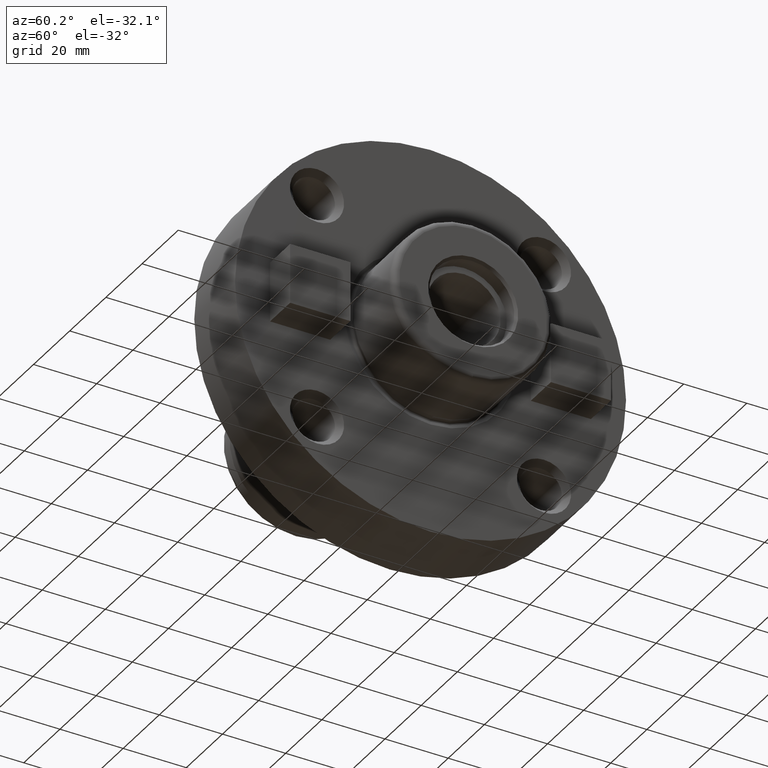
[diagram: clean part render]
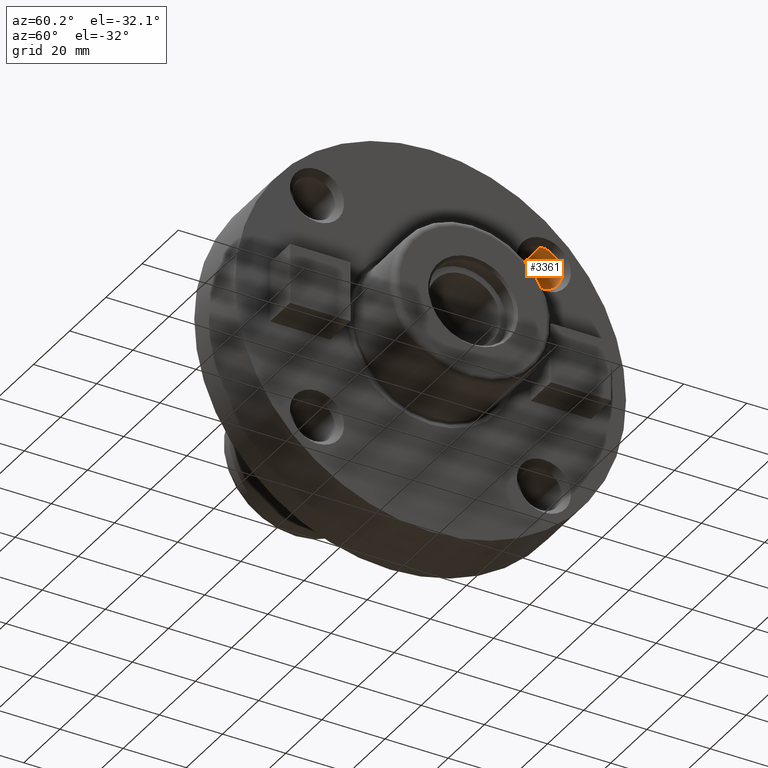
[diagram: same view with one face highlighted and labeled with its STEP entity id]
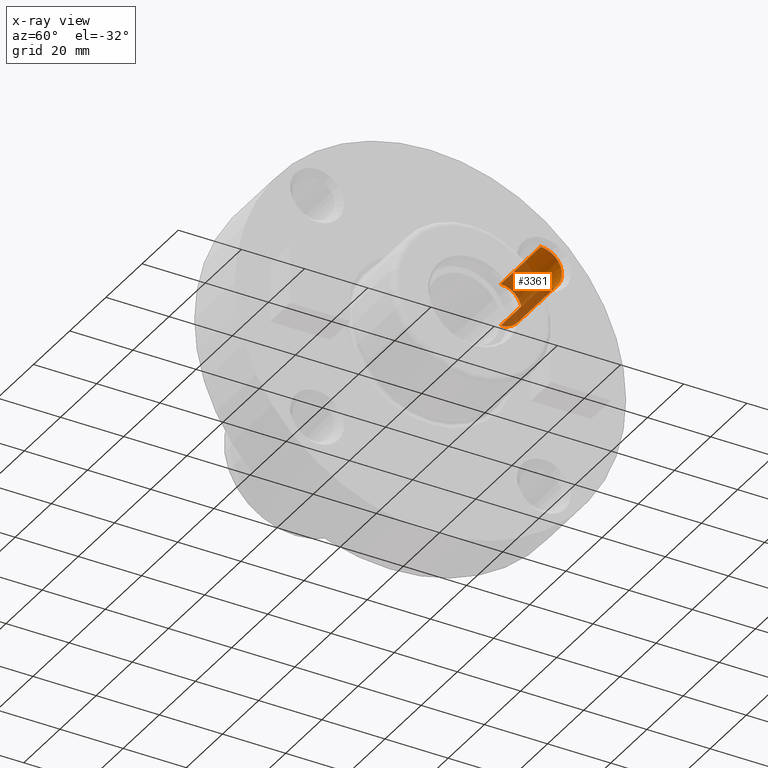
[diagram: x-ray of the same camera — body ghosted, the highlighted face saturated]
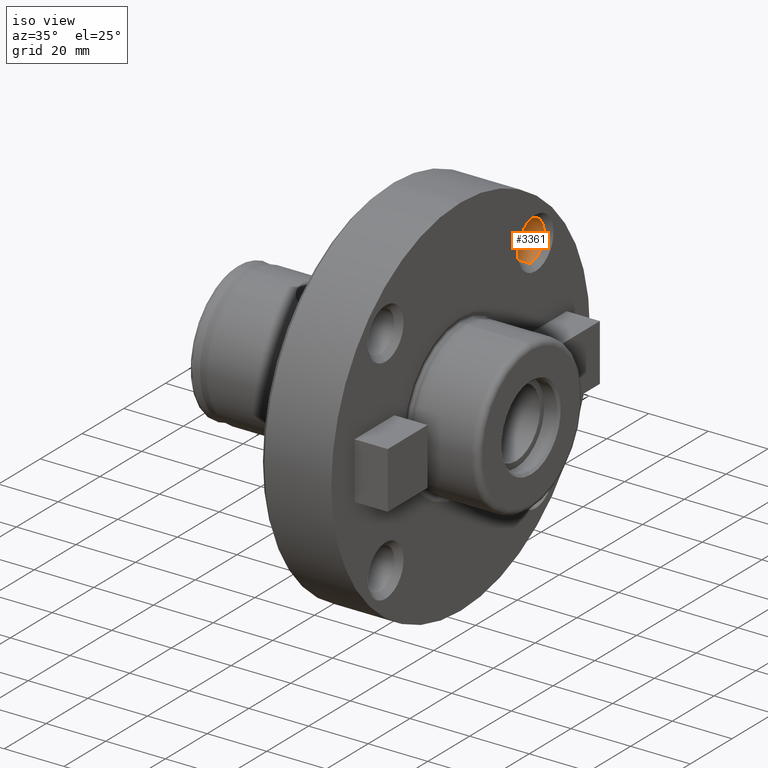
[diagram: same view with one face highlighted and labeled with its STEP entity id]
A machine part, auxiliary view. The second image highlights one B-rep face of the part: STEP entity #3361.
The next image is the same camera in x-ray: the body ghosted, the highlighted face saturated — about 56% of this face is hidden behind the body in this view.
A second angle (iso view) of the same face is appended — the face is thin or edge-on in the first view.
In plain terms, the highlighted cylindrical surface (edge-blend (fillet) strip) has radius 6.7462 mm, axis along (1, 0, 0).
Its self-contained STEP definition (entity closure, byte-faithful):
#164 = AXIS2_PLACEMENT_3D ( 'NONE', #2213, #2215, #2212 ) ;
#1130 = CARTESIAN_POINT ( 'NONE',  ( 50.99999999999999300, 35.92102448427681300, 35.92102448427642300 ) ) ;
#1136 = CARTESIAN_POINT ( 'NONE',  ( 73.17373999999996700, 35.92102448427681300, 35.92102448427642300 ) ) ;
#1137 = DIRECTION ( 'NONE',  ( 1.000000000000000000, 0.0000000000000000000, 0.0000000000000000000 ) ) ;
#1138 = DIRECTION ( 'NONE',  ( 0.0000000000000000000, 0.0000000000000000000, -1.000000000000000000 ) ) ;
#1143 = DIRECTION ( 'NONE',  ( 1.000000000000000000, -0.0000000000000000000, -0.0000000000000000000 ) ) ;
#1144 = DIRECTION ( 'NONE',  ( 0.0000000000000000000, 0.0000000000000000000, -1.000000000000000000 ) ) ;
#1894 = CIRCLE ( 'NONE', #4538, 6.746239999999994000 ) ;
#1896 = CIRCLE ( 'NONE', #4540, 6.746239999999994000 ) ;
#2212 = DIRECTION ( 'NONE',  ( 0.0000000000000000000, 0.0000000000000000000, -1.000000000000000000 ) ) ;
#2213 = CARTESIAN_POINT ( 'NONE',  ( 74.99999999999998600, 35.92102448427681300, 35.92102448427642300 ) ) ;
#2215 = DIRECTION ( 'NONE',  ( 1.000000000000000000, -0.0000000000000000000, -0.0000000000000000000 ) ) ;
#2775 = ORIENTED_EDGE ( 'NONE', *, *, #5262, .T. ) ;
#2797 = ORIENTED_EDGE ( 'NONE', *, *, #5081, .F. ) ;
#2801 = ORIENTED_EDGE ( 'NONE', *, *, #5083, .T. ) ;
#2808 = ORIENTED_EDGE ( 'NONE', *, *, #5260, .F. ) ;
#2948 = DIRECTION ( 'NONE',  ( 1.000000000000000000, -0.0000000000000000000, -0.0000000000000000000 ) ) ;
#2950 = CARTESIAN_POINT ( 'NONE',  ( 74.99999999999998600, 35.92102448427681300, 29.17478448427642600 ) ) ;
#2968 = DIRECTION ( 'NONE',  ( 1.000000000000000000, -0.0000000000000000000, -0.0000000000000000000 ) ) ;
#2984 = CARTESIAN_POINT ( 'NONE',  ( 74.99999999999998600, 35.92102448427681300, 42.66726448427641600 ) ) ;
#3361 = ADVANCED_FACE ( 'NONE', ( #3991 ), #4000, .F. ) ;
#3783 = EDGE_LOOP ( 'NONE', ( #2797, #2808, #2801, #2775 ) ) ;
#3991 = FACE_OUTER_BOUND ( 'NONE', #3783, .T. ) ;
#4000 = CYLINDRICAL_SURFACE ( 'NONE', #164, 6.746239999999994000 ) ;
#4262 = LINE ( 'NONE', #2984, #4273 ) ;
#4273 = VECTOR ( 'NONE', #2968, 1000.000000000000000 ) ;
#4277 = LINE ( 'NONE', #2950, #4278 ) ;
#4278 = VECTOR ( 'NONE', #2948, 1000.000000000000000 ) ;
#4384 = VERTEX_POINT ( 'NONE', #4920 ) ;
#4385 = VERTEX_POINT ( 'NONE', #4933 ) ;
#4388 = VERTEX_POINT ( 'NONE', #4966 ) ;
#4390 = VERTEX_POINT ( 'NONE', #4965 ) ;
#4538 = AXIS2_PLACEMENT_3D ( 'NONE', #1130, #1137, #1138 ) ;
#4540 = AXIS2_PLACEMENT_3D ( 'NONE', #1136, #1143, #1144 ) ;
#4920 = CARTESIAN_POINT ( 'NONE',  ( 73.17373999999996700, 35.92102448427681300, 42.66726448427641600 ) ) ;
#4933 = CARTESIAN_POINT ( 'NONE',  ( 73.17373999999996700, 35.92102448427681300, 29.17478448427642600 ) ) ;
#4965 = CARTESIAN_POINT ( 'NONE',  ( 50.99999999999999300, 35.92102448427681300, 29.17478448427642600 ) ) ;
#4966 = CARTESIAN_POINT ( 'NONE',  ( 50.99999999999999300, 35.92102448427681300, 42.66726448427641600 ) ) ;
#5081 = EDGE_CURVE ( 'NONE', #4388, #4384, #4262, .T. ) ;
#5083 = EDGE_CURVE ( 'NONE', #4390, #4385, #4277, .T. ) ;
#5260 = EDGE_CURVE ( 'NONE', #4390, #4388, #1894, .T. ) ;
#5262 = EDGE_CURVE ( 'NONE', #4385, #4384, #1896, .T. ) ;